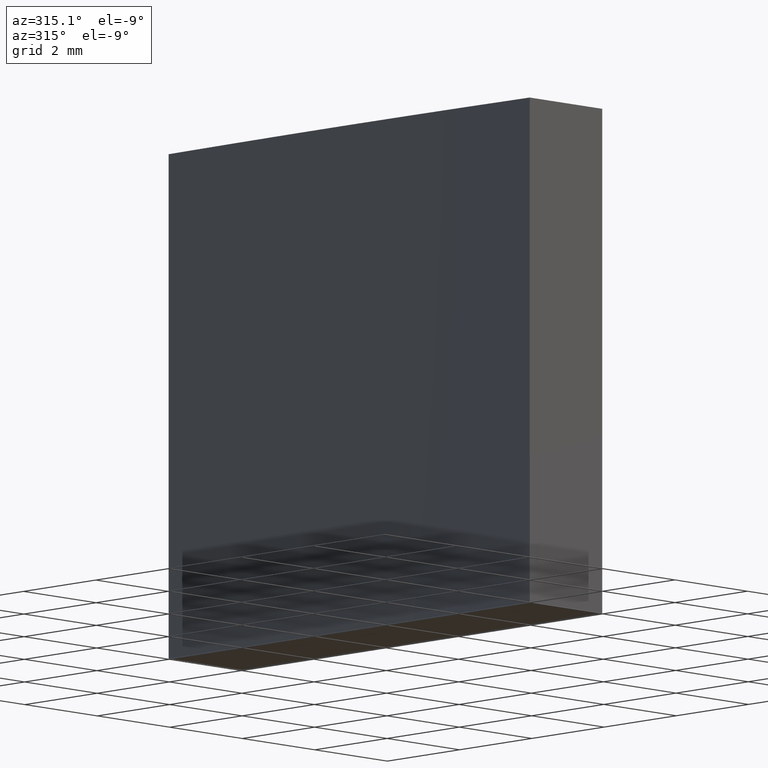
[diagram: clean part render]
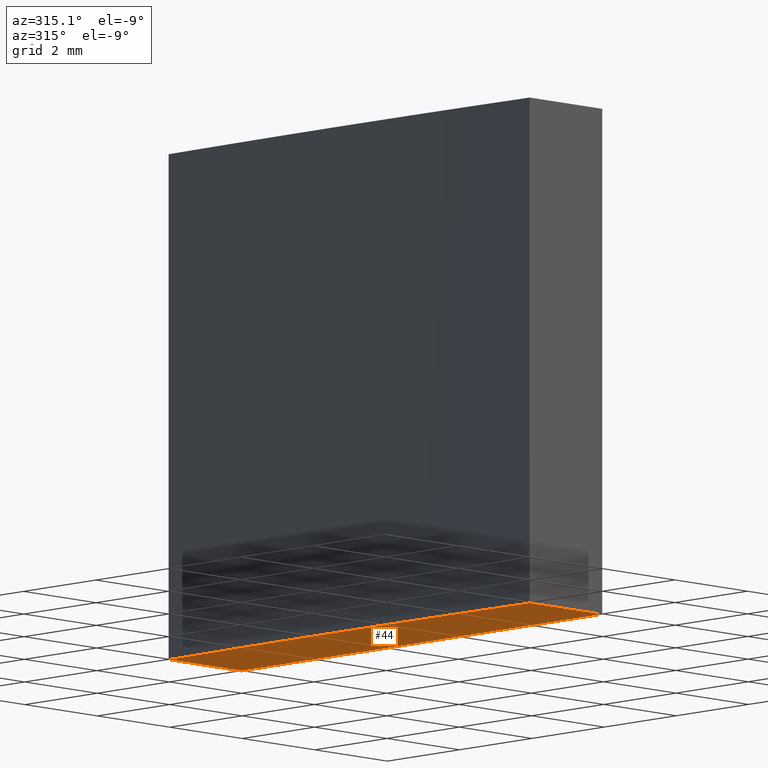
[diagram: same view with one face highlighted and labeled with its STEP entity id]
A machine part, auxiliary view. The second image highlights one B-rep face of the part: STEP entity #44.
In plain terms, the highlighted planar face has unit normal (0, 0, 1).
Its self-contained STEP definition (entity closure, byte-faithful):
#18 = CARTESIAN_POINT ( 'NONE',  ( -153.0193858844757244, 5.000000000000000000, 0.000000000000000000 ) ) ;
#27 = ORIENTED_EDGE ( 'NONE', *, *, #102, .F. ) ;
#34 = AXIS2_PLACEMENT_3D ( 'NONE', #100, #239, #221 ) ;
#36 = DIRECTION ( 'NONE',  ( 1.000000000000000000, 0.000000000000000000, -0.000000000000000000 ) ) ;
#37 = LINE ( 'NONE', #18, #106 ) ;
#39 = LINE ( 'NONE', #118, #201 ) ;
#40 = DIRECTION ( 'NONE',  ( 1.000000000000000000, 0.000000000000000000, 0.000000000000000000 ) ) ;
#42 = AXIS2_PLACEMENT_3D ( 'NONE', #95, #245, #222 ) ;
#44 = ADVANCED_FACE ( 'NONE', ( #200 ), #136, .F. ) ;
#52 = ORIENTED_EDGE ( 'NONE', *, *, #117, .F. ) ;
#54 = DIRECTION ( 'NONE',  ( -0.000000000000000000, 1.000000000000000000, -0.000000000000000000 ) ) ;
#57 = DIRECTION ( 'NONE',  ( 0.000000000000000000, 0.000000000000000000, 1.000000000000000000 ) ) ;
#59 = CARTESIAN_POINT ( 'NONE',  ( -155.0193858844757244, -5.000000000000000000, 0.000000000000000000 ) ) ;
#60 = DIRECTION ( 'NONE',  ( -1.000000000000000000, -0.000000000000000000, -0.000000000000000000 ) ) ;
#80 = CARTESIAN_POINT ( 'NONE',  ( -153.0193858844757244, 5.000000000000000000, 0.000000000000000000 ) ) ;
#87 = VERTEX_POINT ( 'NONE', #272 ) ;
#95 = CARTESIAN_POINT ( 'NONE',  ( 0.000000000000000000, 0.000000000000000000, 0.000000000000000000 ) ) ;
#100 = CARTESIAN_POINT ( 'NONE',  ( 0.000000000000000000, 0.000000000000000000, 0.000000000000000000 ) ) ;
#102 = EDGE_CURVE ( 'NONE', #87, #217, #115, .T. ) ;
#106 = VECTOR ( 'NONE', #54, 1000.000000000000000 ) ;
#107 = VERTEX_POINT ( 'NONE', #59 ) ;
#109 = ORIENTED_EDGE ( 'NONE', *, *, #177, .F. ) ;
#112 = EDGE_LOOP ( 'NONE', ( #27, #197, #109, #52, #134 ) ) ;
#115 = CIRCLE ( 'NONE', #42, 155.0999999999999943 ) ;
#117 = EDGE_CURVE ( 'NONE', #107, #153, #224, .T. ) ;
#118 = CARTESIAN_POINT ( 'NONE',  ( -155.0193858844757244, 5.000000000000000000, 0.000000000000000000 ) ) ;
#134 = ORIENTED_EDGE ( 'NONE', *, *, #139, .F. ) ;
#136 = PLANE ( 'NONE',  #223 ) ;
#139 = EDGE_CURVE ( 'NONE', #217, #107, #155, .T. ) ;
#153 = VERTEX_POINT ( 'NONE', #161 ) ;
#155 = CIRCLE ( 'NONE', #34, 155.0999999999999943 ) ;
#156 = CARTESIAN_POINT ( 'NONE',  ( -155.0193858844757244, -5.000000000000000000, 0.000000000000000000 ) ) ;
#158 = CARTESIAN_POINT ( 'NONE',  ( 0.000000000000000000, 0.000000000000000000, 0.000000000000000000 ) ) ;
#161 = CARTESIAN_POINT ( 'NONE',  ( -153.0193858844757244, -5.000000000000000000, 0.000000000000000000 ) ) ;
#162 = EDGE_CURVE ( 'NONE', #214, #87, #39, .T. ) ;
#177 = EDGE_CURVE ( 'NONE', #153, #214, #37, .T. ) ;
#197 = ORIENTED_EDGE ( 'NONE', *, *, #162, .F. ) ;
#200 = FACE_OUTER_BOUND ( 'NONE', #112, .T. ) ;
#201 = VECTOR ( 'NONE', #60, 1000.000000000000000 ) ;
#214 = VERTEX_POINT ( 'NONE', #80 ) ;
#217 = VERTEX_POINT ( 'NONE', #229 ) ;
#221 = DIRECTION ( 'NONE',  ( 1.000000000000000000, 0.000000000000000000, 0.000000000000000000 ) ) ;
#222 = DIRECTION ( 'NONE',  ( 1.000000000000000000, 0.000000000000000000, 0.000000000000000000 ) ) ;
#223 = AXIS2_PLACEMENT_3D ( 'NONE', #158, #57, #36 ) ;
#224 = LINE ( 'NONE', #156, #248 ) ;
#229 = CARTESIAN_POINT ( 'NONE',  ( -155.0999999999999943, 0.000000000000000000, 0.000000000000000000 ) ) ;
#239 = DIRECTION ( 'NONE',  ( 0.000000000000000000, 0.000000000000000000, 1.000000000000000000 ) ) ;
#245 = DIRECTION ( 'NONE',  ( 0.000000000000000000, 0.000000000000000000, 1.000000000000000000 ) ) ;
#248 = VECTOR ( 'NONE', #40, 1000.000000000000000 ) ;
#272 = CARTESIAN_POINT ( 'NONE',  ( -155.0193858844757244, 5.000000000000000000, 0.000000000000000000 ) ) ;